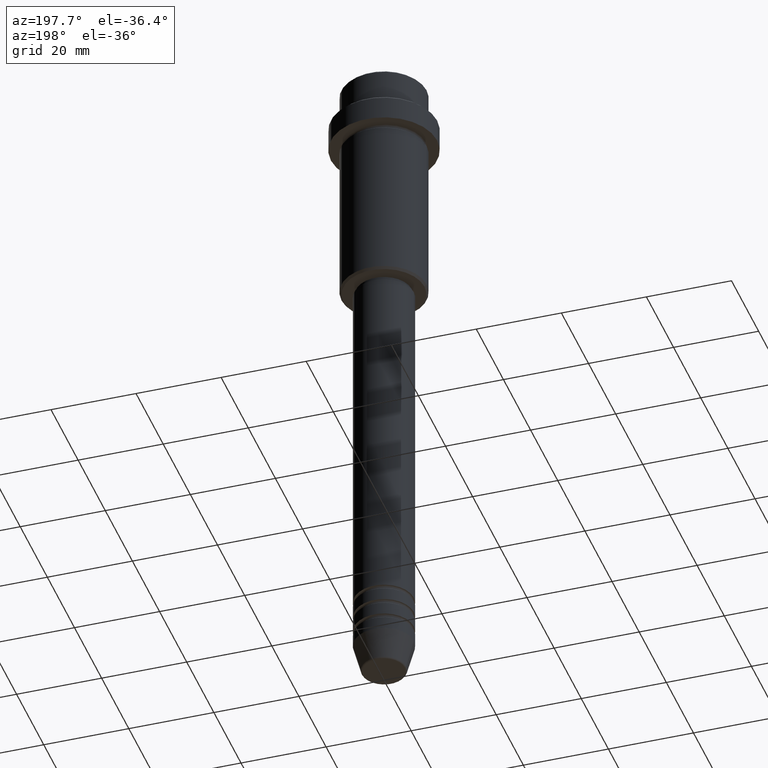
[diagram: clean part render]
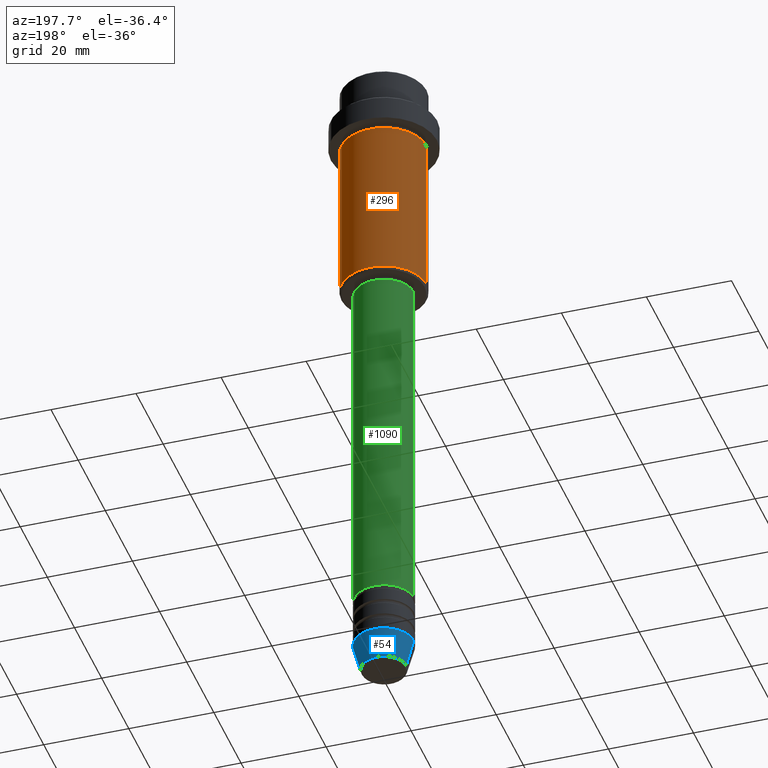
[diagram: same view with three faces highlighted in distinct colors, each labeled with its STEP entity id]
A machine part, auxiliary view with three faces highlighted in distinct colors.
Their STEP definitions:

[orange] entity #296 — the highlighted cylindrical surface (partial cylindrical patch) has radius 10 mm, axis along (-0, -0, 1).
#40 = CARTESIAN_POINT ( 'NONE',  ( 9.999999999999998224, 0.000000000000000000, 0.000000000000000000 ) ) ;
#46 = CARTESIAN_POINT ( 'NONE',  ( 0.000000000000000000, 0.000000000000000000, -16.00000000000000000 ) ) ;
#79 = CARTESIAN_POINT ( 'NONE',  ( 0.000000000000000000, 0.000000000000000000, -54.49999999999996447 ) ) ;
#121 = VERTEX_POINT ( 'NONE', #439 ) ;
#142 = ORIENTED_EDGE ( 'NONE', *, *, #188, .T. ) ;
#161 = VERTEX_POINT ( 'NONE', #689 ) ;
#168 = ORIENTED_EDGE ( 'NONE', *, *, #1208, .F. ) ;
#188 = EDGE_CURVE ( 'NONE', #949, #483, #675, .T. ) ;
#257 = LINE ( 'NONE', #40, #1314 ) ;
#264 = ORIENTED_EDGE ( 'NONE', *, *, #292, .F. ) ;
#281 = CYLINDRICAL_SURFACE ( 'NONE', #1386, 9.999999999999998224 ) ;
#292 = EDGE_CURVE ( 'NONE', #161, #121, #257, .T. ) ;
#296 = ADVANCED_FACE ( 'NONE', ( #793 ), #281, .T. ) ;
#376 = CARTESIAN_POINT ( 'NONE',  ( -9.999999999999998224, 1.224646799147353059E-15, -16.00000000000000000 ) ) ;
#424 = CIRCLE ( 'NONE', #598, 9.999999999999998224 ) ;
#439 = CARTESIAN_POINT ( 'NONE',  ( 9.999999999999998224, 0.000000000000000000, -16.00000000000000000 ) ) ;
#448 = CIRCLE ( 'NONE', #1004, 9.999999999999998224 ) ;
#473 = DIRECTION ( 'NONE',  ( -0.000000000000000000, -0.000000000000000000, 1.000000000000000000 ) ) ;
#483 = VERTEX_POINT ( 'NONE', #376 ) ;
#548 = CARTESIAN_POINT ( 'NONE',  ( -9.999999999999998224, 1.224646799147353059E-15, -54.49999999999996447 ) ) ;
#549 = EDGE_LOOP ( 'NONE', ( #1398, #142, #168, #264 ) ) ;
#551 = DIRECTION ( 'NONE',  ( -0.000000000000000000, -0.000000000000000000, 1.000000000000000000 ) ) ;
#567 = DIRECTION ( 'NONE',  ( 1.000000000000000000, 0.000000000000000000, 0.000000000000000000 ) ) ;
#579 = VECTOR ( 'NONE', #997, 1000.000000000000000 ) ;
#598 = AXIS2_PLACEMENT_3D ( 'NONE', #46, #659, #567 ) ;
#659 = DIRECTION ( 'NONE',  ( -0.000000000000000000, -0.000000000000000000, 1.000000000000000000 ) ) ;
#675 = LINE ( 'NONE', #990, #579 ) ;
#689 = CARTESIAN_POINT ( 'NONE',  ( 9.999999999999998224, 0.000000000000000000, -54.49999999999996447 ) ) ;
#793 = FACE_OUTER_BOUND ( 'NONE', #549, .T. ) ;
#833 = DIRECTION ( 'NONE',  ( 1.000000000000000000, 0.000000000000000000, 0.000000000000000000 ) ) ;
#835 = DIRECTION ( 'NONE',  ( -0.000000000000000000, -0.000000000000000000, 1.000000000000000000 ) ) ;
#949 = VERTEX_POINT ( 'NONE', #548 ) ;
#990 = CARTESIAN_POINT ( 'NONE',  ( -9.999999999999998224, 1.224646799147353059E-15, 0.000000000000000000 ) ) ;
#997 = DIRECTION ( 'NONE',  ( -0.000000000000000000, -0.000000000000000000, 1.000000000000000000 ) ) ;
#1004 = AXIS2_PLACEMENT_3D ( 'NONE', #79, #835, #1177 ) ;
#1177 = DIRECTION ( 'NONE',  ( -1.000000000000000000, 0.000000000000000000, 0.000000000000000000 ) ) ;
#1208 = EDGE_CURVE ( 'NONE', #121, #483, #424, .T. ) ;
#1296 = CARTESIAN_POINT ( 'NONE',  ( 0.000000000000000000, 0.000000000000000000, 0.000000000000000000 ) ) ;
#1314 = VECTOR ( 'NONE', #473, 1000.000000000000000 ) ;
#1386 = AXIS2_PLACEMENT_3D ( 'NONE', #1296, #551, #833 ) ;
#1398 = ORIENTED_EDGE ( 'NONE', *, *, #1404, .T. ) ;
#1404 = EDGE_CURVE ( 'NONE', #161, #949, #448, .T. ) ;

[blue] entity #54 — the highlighted conical surface has half-angle 15 deg.
#22 = ORIENTED_EDGE ( 'NONE', *, *, #580, .F. ) ;
#26 = VERTEX_POINT ( 'NONE', #1380 ) ;
#37 = VECTOR ( 'NONE', #143, 1000.000000000000000 ) ;
#54 = ADVANCED_FACE ( 'NONE', ( #826 ), #59, .T. ) ;
#59 = CONICAL_SURFACE ( 'NONE', #801, 7.000000000000000000, 0.2617993877991500740 ) ;
#62 = AXIS2_PLACEMENT_3D ( 'NONE', #1029, #395, #1267 ) ;
#91 = DIRECTION ( 'NONE',  ( -0.000000000000000000, -0.000000000000000000, 1.000000000000000000 ) ) ;
#111 = DIRECTION ( 'NONE',  ( 0.2588190451025213501, 0.000000000000000000, 0.9659258262890680902 ) ) ;
#118 = DIRECTION ( 'NONE',  ( -0.000000000000000000, -0.000000000000000000, 1.000000000000000000 ) ) ;
#123 = DIRECTION ( 'NONE',  ( 1.000000000000000000, 0.000000000000000000, 0.000000000000000000 ) ) ;
#143 = DIRECTION ( 'NONE',  ( -0.2588190451025213501, 3.169619151431772337E-17, 0.9659258262890680902 ) ) ;
#169 = EDGE_LOOP ( 'NONE', ( #625, #632, #22, #286 ) ) ;
#200 = VERTEX_POINT ( 'NONE', #1230 ) ;
#221 = CIRCLE ( 'NONE', #62, 7.000000000000000000 ) ;
#251 = AXIS2_PLACEMENT_3D ( 'NONE', #1298, #118, #123 ) ;
#286 = ORIENTED_EDGE ( 'NONE', *, *, #1396, .F. ) ;
#302 = CARTESIAN_POINT ( 'NONE',  ( 0.000000000000000000, 0.000000000000000000, -153.0000000000000000 ) ) ;
#395 = DIRECTION ( 'NONE',  ( -0.000000000000000000, -0.000000000000000000, 1.000000000000000000 ) ) ;
#419 = LINE ( 'NONE', #1044, #936 ) ;
#580 = EDGE_CURVE ( 'NONE', #200, #26, #221, .T. ) ;
#625 = ORIENTED_EDGE ( 'NONE', *, *, #944, .T. ) ;
#632 = ORIENTED_EDGE ( 'NONE', *, *, #1324, .T. ) ;
#715 = CARTESIAN_POINT ( 'NONE',  ( 5.223655072137196598, 0.000000000000000000, -159.6294095225512137 ) ) ;
#801 = AXIS2_PLACEMENT_3D ( 'NONE', #302, #91, #1186 ) ;
#826 = FACE_OUTER_BOUND ( 'NONE', #169, .T. ) ;
#839 = VERTEX_POINT ( 'NONE', #715 ) ;
#872 = CARTESIAN_POINT ( 'NONE',  ( -5.223655072137196598, 7.484830028987062146E-16, -159.6294095225512137 ) ) ;
#936 = VECTOR ( 'NONE', #111, 1000.000000000000000 ) ;
#944 = EDGE_CURVE ( 'NONE', #839, #1279, #1291, .T. ) ;
#1029 = CARTESIAN_POINT ( 'NONE',  ( 0.000000000000000000, 0.000000000000000000, -153.0000000000000000 ) ) ;
#1044 = CARTESIAN_POINT ( 'NONE',  ( 7.000000000000000000, 0.000000000000000000, -153.0000000000000000 ) ) ;
#1186 = DIRECTION ( 'NONE',  ( 1.000000000000000000, 0.000000000000000000, 0.000000000000000000 ) ) ;
#1227 = LINE ( 'NONE', #1345, #37 ) ;
#1230 = CARTESIAN_POINT ( 'NONE',  ( 7.000000000000000000, 0.000000000000000000, -153.0000000000000000 ) ) ;
#1267 = DIRECTION ( 'NONE',  ( 1.000000000000000000, 0.000000000000000000, 0.000000000000000000 ) ) ;
#1279 = VERTEX_POINT ( 'NONE', #872 ) ;
#1291 = CIRCLE ( 'NONE', #251, 5.223655072137196598 ) ;
#1298 = CARTESIAN_POINT ( 'NONE',  ( 0.000000000000000000, 0.000000000000000000, -159.6294095225512137 ) ) ;
#1324 = EDGE_CURVE ( 'NONE', #1279, #26, #1227, .T. ) ;
#1345 = CARTESIAN_POINT ( 'NONE',  ( -7.000000000000000000, 8.572527594031473190E-16, -153.0000000000000000 ) ) ;
#1380 = CARTESIAN_POINT ( 'NONE',  ( -7.000000000000000000, 8.572527594031473190E-16, -153.0000000000000000 ) ) ;
#1396 = EDGE_CURVE ( 'NONE', #839, #200, #419, .T. ) ;

[green] entity #1090 — the highlighted cylindrical surface (edge-blend (fillet) strip) has radius 7 mm, axis along (-0, -0, 1).
#181 = CARTESIAN_POINT ( 'NONE',  ( 0.000000000000000000, 0.000000000000000000, -140.9999999999999147 ) ) ;
#203 = LINE ( 'NONE', #321, #536 ) ;
#274 = EDGE_LOOP ( 'NONE', ( #1018, #1213, #651, #1089 ) ) ;
#284 = VERTEX_POINT ( 'NONE', #365 ) ;
#321 = CARTESIAN_POINT ( 'NONE',  ( -7.000000000000000000, 8.572527594031473190E-16, 0.000000000000000000 ) ) ;
#360 = CIRCLE ( 'NONE', #1338, 7.000000000000000000 ) ;
#365 = CARTESIAN_POINT ( 'NONE',  ( -7.000000000000000000, 8.572527594031473190E-16, -140.9999999999999147 ) ) ;
#371 = DIRECTION ( 'NONE',  ( -0.000000000000000000, -0.000000000000000000, 1.000000000000000000 ) ) ;
#444 = DIRECTION ( 'NONE',  ( -0.000000000000000000, -0.000000000000000000, 1.000000000000000000 ) ) ;
#460 = FACE_OUTER_BOUND ( 'NONE', #274, .T. ) ;
#474 = CARTESIAN_POINT ( 'NONE',  ( 7.000000000000000000, 0.000000000000000000, 0.000000000000000000 ) ) ;
#482 = LINE ( 'NONE', #474, #891 ) ;
#489 = VERTEX_POINT ( 'NONE', #1105 ) ;
#536 = VECTOR ( 'NONE', #1168, 1000.000000000000000 ) ;
#554 = CARTESIAN_POINT ( 'NONE',  ( -7.000000000000000000, 8.572527594031473190E-16, -55.99999999999999289 ) ) ;
#577 = DIRECTION ( 'NONE',  ( -0.000000000000000000, -0.000000000000000000, 1.000000000000000000 ) ) ;
#651 = ORIENTED_EDGE ( 'NONE', *, *, #963, .F. ) ;
#656 = EDGE_CURVE ( 'NONE', #1178, #284, #786, .T. ) ;
#699 = DIRECTION ( 'NONE',  ( -0.000000000000000000, -0.000000000000000000, 1.000000000000000000 ) ) ;
#761 = EDGE_CURVE ( 'NONE', #284, #999, #203, .T. ) ;
#786 = CIRCLE ( 'NONE', #1221, 7.000000000000000000 ) ;
#789 = CYLINDRICAL_SURFACE ( 'NONE', #809, 7.000000000000000000 ) ;
#809 = AXIS2_PLACEMENT_3D ( 'NONE', #898, #577, #1021 ) ;
#891 = VECTOR ( 'NONE', #371, 1000.000000000000000 ) ;
#898 = CARTESIAN_POINT ( 'NONE',  ( 0.000000000000000000, 0.000000000000000000, 0.000000000000000000 ) ) ;
#963 = EDGE_CURVE ( 'NONE', #489, #999, #360, .T. ) ;
#999 = VERTEX_POINT ( 'NONE', #554 ) ;
#1016 = CARTESIAN_POINT ( 'NONE',  ( 7.000000000000000000, 0.000000000000000000, -140.9999999999999147 ) ) ;
#1018 = ORIENTED_EDGE ( 'NONE', *, *, #656, .T. ) ;
#1021 = DIRECTION ( 'NONE',  ( 1.000000000000000000, 0.000000000000000000, 0.000000000000000000 ) ) ;
#1069 = EDGE_CURVE ( 'NONE', #1178, #489, #482, .T. ) ;
#1089 = ORIENTED_EDGE ( 'NONE', *, *, #1069, .F. ) ;
#1090 = ADVANCED_FACE ( 'NONE', ( #460 ), #789, .T. ) ;
#1091 = CARTESIAN_POINT ( 'NONE',  ( 0.000000000000000000, 0.000000000000000000, -55.99999999999999289 ) ) ;
#1105 = CARTESIAN_POINT ( 'NONE',  ( 7.000000000000000000, 0.000000000000000000, -55.99999999999999289 ) ) ;
#1134 = DIRECTION ( 'NONE',  ( 1.000000000000000000, 0.000000000000000000, 0.000000000000000000 ) ) ;
#1168 = DIRECTION ( 'NONE',  ( -0.000000000000000000, -0.000000000000000000, 1.000000000000000000 ) ) ;
#1178 = VERTEX_POINT ( 'NONE', #1016 ) ;
#1213 = ORIENTED_EDGE ( 'NONE', *, *, #761, .T. ) ;
#1221 = AXIS2_PLACEMENT_3D ( 'NONE', #181, #699, #1134 ) ;
#1326 = DIRECTION ( 'NONE',  ( 1.000000000000000000, 0.000000000000000000, 0.000000000000000000 ) ) ;
#1338 = AXIS2_PLACEMENT_3D ( 'NONE', #1091, #444, #1326 ) ;